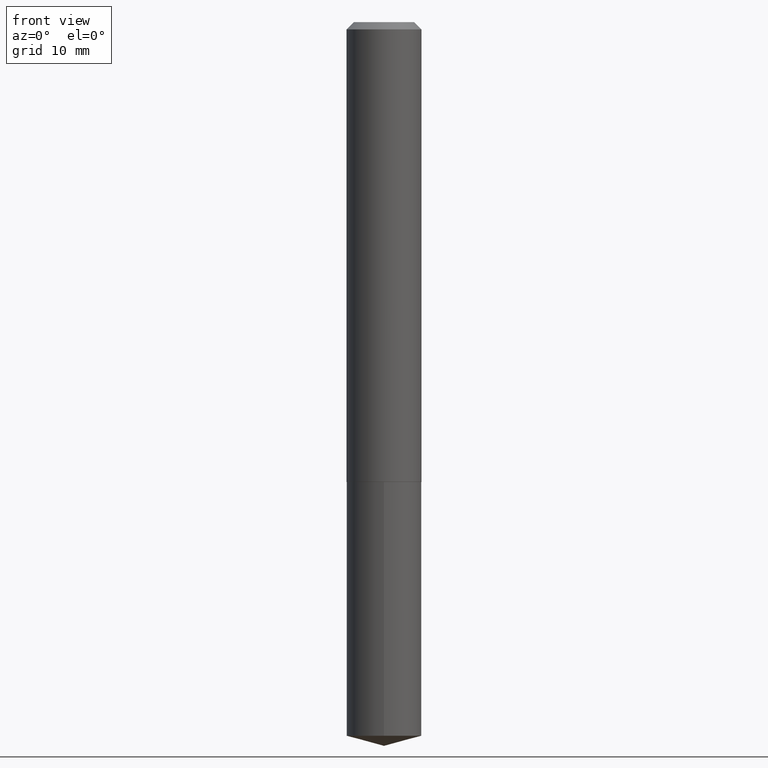
[diagram: clean part render]
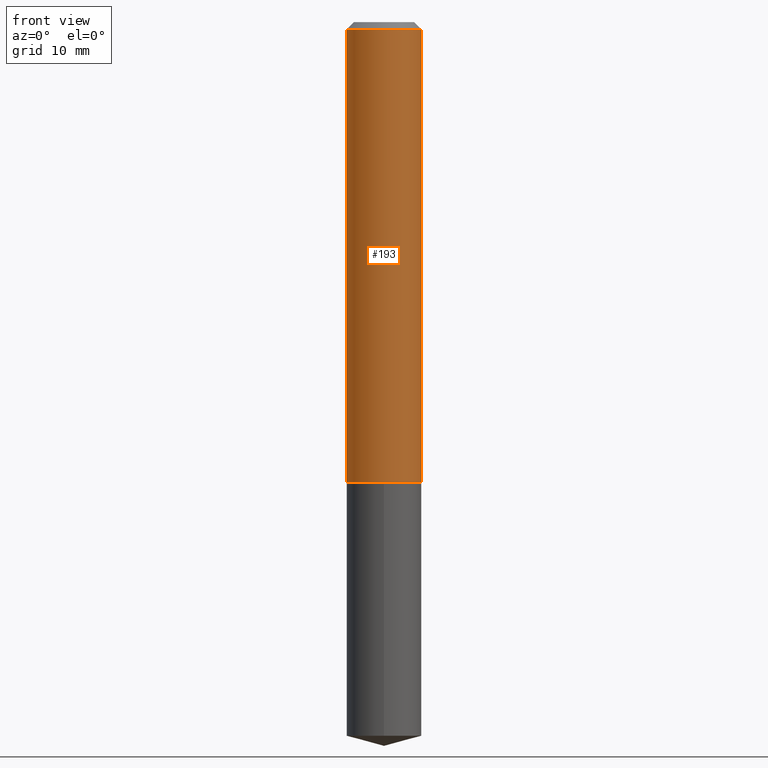
[diagram: same view with one face highlighted and labeled with its STEP entity id]
A machine part, front view. The second image highlights one B-rep face of the part: STEP entity #193.
In plain terms, the highlighted cylindrical surface (partial cylindrical patch) has radius 4.0996 mm, axis along (-0, 0, 1).
Its self-contained STEP definition (entity closure, byte-faithful):
#7 = EDGE_CURVE ( 'NONE', #228, #206, #263, .T. ) ;
#26 = CYLINDRICAL_SURFACE ( 'NONE', #197, 0.1614000000000000989 ) ;
#31 = EDGE_CURVE ( 'NONE', #228, #48, #357, .T. ) ;
#48 = VERTEX_POINT ( 'NONE', #60 ) ;
#50 = EDGE_LOOP ( 'NONE', ( #148, #88, #265, #267 ) ) ;
#55 = CARTESIAN_POINT ( 'NONE',  ( 0.1613999999999999879, -1.236158968017412234E-15, -0.03125000000000020817 ) ) ;
#60 = CARTESIAN_POINT ( 'NONE',  ( -0.1613999999999999879, -2.356972835045764977E-15, -0.03125000000000020817 ) ) ;
#63 = DIRECTION ( 'NONE',  ( 1.000000000000000000, -6.982962677686266711E-15, 0.000000000000000000 ) ) ;
#65 = CARTESIAN_POINT ( 'NONE',  ( -0.1614000000000000989, 1.146815975516802403E-15, -7.939161235671423092E-30 ) ) ;
#85 = DIRECTION ( 'NONE',  ( 1.000000000000000000, -6.982962677686265133E-15, 4.876176775795935793E-29 ) ) ;
#86 = DIRECTION ( 'NONE',  ( -2.445468806185136877E-29, 3.491481338843145188E-15, 1.000000000000000000 ) ) ;
#88 = ORIENTED_EDGE ( 'NONE', *, *, #7, .T. ) ;
#127 = EDGE_CURVE ( 'NONE', #206, #174, #184, .T. ) ;
#145 = CARTESIAN_POINT ( 'NONE',  ( 4.831757267260592925E-29, -6.898468829286286448E-15, -1.975800000000000001 ) ) ;
#148 = ORIENTED_EDGE ( 'NONE', *, *, #31, .F. ) ;
#159 = CIRCLE ( 'NONE', #234, 0.1613999999999999879 ) ;
#167 = DIRECTION ( 'NONE',  ( -2.445468806185136597E-29, 3.491481338843145583E-15, 1.000000000000000000 ) ) ;
#170 = CARTESIAN_POINT ( 'NONE',  ( 0.000000000000000000, 0.000000000000000000, 0.000000000000000000 ) ) ;
#174 = VERTEX_POINT ( 'NONE', #55 ) ;
#180 = DIRECTION ( 'NONE',  ( -2.445468806185136597E-29, 3.491481338843145583E-15, 1.000000000000000000 ) ) ;
#184 = LINE ( 'NONE', #208, #281 ) ;
#185 = CARTESIAN_POINT ( 'NONE',  ( 7.642090019328602662E-31, -1.091087918388490267E-16, -0.03125000000000020817 ) ) ;
#190 = VECTOR ( 'NONE', #362, 39.37007874015748143 ) ;
#193 = ADVANCED_FACE ( 'NONE', ( #386 ), #26, .T. ) ;
#197 = AXIS2_PLACEMENT_3D ( 'NONE', #170, #167, #85 ) ;
#206 = VERTEX_POINT ( 'NONE', #264 ) ;
#208 = CARTESIAN_POINT ( 'NONE',  ( 0.1614000000000000989, -1.127050176178563922E-15, 7.870149316134644921E-30 ) ) ;
#228 = VERTEX_POINT ( 'NONE', #289 ) ;
#234 = AXIS2_PLACEMENT_3D ( 'NONE', #185, #333, #63 ) ;
#263 = CIRCLE ( 'NONE', #335, 0.1614000000000002100 ) ;
#264 = CARTESIAN_POINT ( 'NONE',  ( 0.1614000000000002100, -8.025519005464851751E-15, -1.975800000000000001 ) ) ;
#265 = ORIENTED_EDGE ( 'NONE', *, *, #127, .T. ) ;
#267 = ORIENTED_EDGE ( 'NONE', *, *, #351, .F. ) ;
#281 = VECTOR ( 'NONE', #86, 39.37007874015748143 ) ;
#289 = CARTESIAN_POINT ( 'NONE',  ( -0.1614000000000002100, -5.751652853769483256E-15, -1.975800000000000001 ) ) ;
#311 = DIRECTION ( 'NONE',  ( 1.000000000000000000, -6.982962677686268288E-15, 0.000000000000000000 ) ) ;
#333 = DIRECTION ( 'NONE',  ( -2.445468806185136597E-29, 3.491481338843145583E-15, 1.000000000000000000 ) ) ;
#335 = AXIS2_PLACEMENT_3D ( 'NONE', #145, #180, #311 ) ;
#351 = EDGE_CURVE ( 'NONE', #48, #174, #159, .T. ) ;
#357 = LINE ( 'NONE', #65, #190 ) ;
#362 = DIRECTION ( 'NONE',  ( -2.445468806185136877E-29, 3.491481338843145188E-15, 1.000000000000000000 ) ) ;
#386 = FACE_OUTER_BOUND ( 'NONE', #50, .T. ) ;